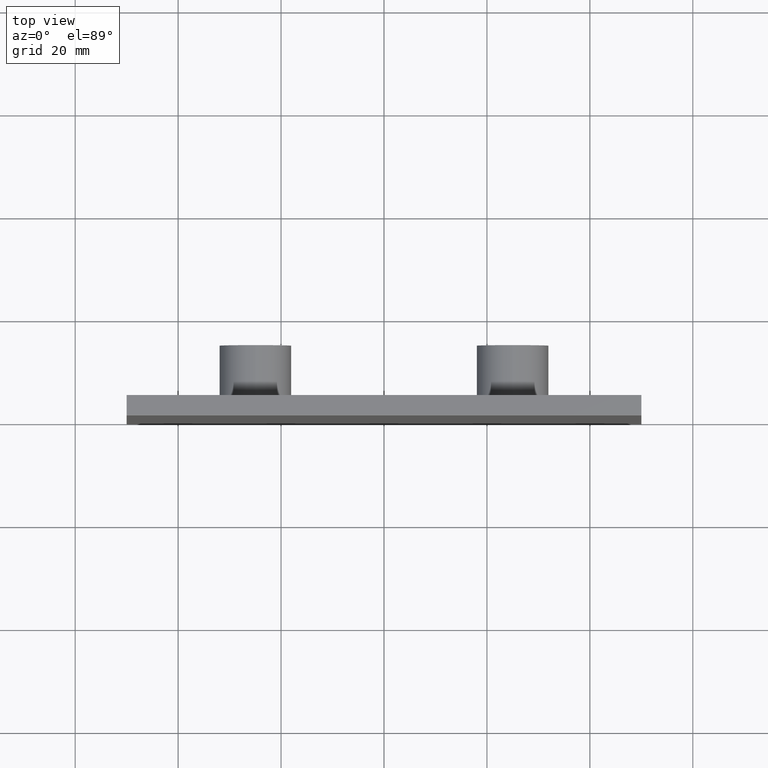
[diagram: clean part render]
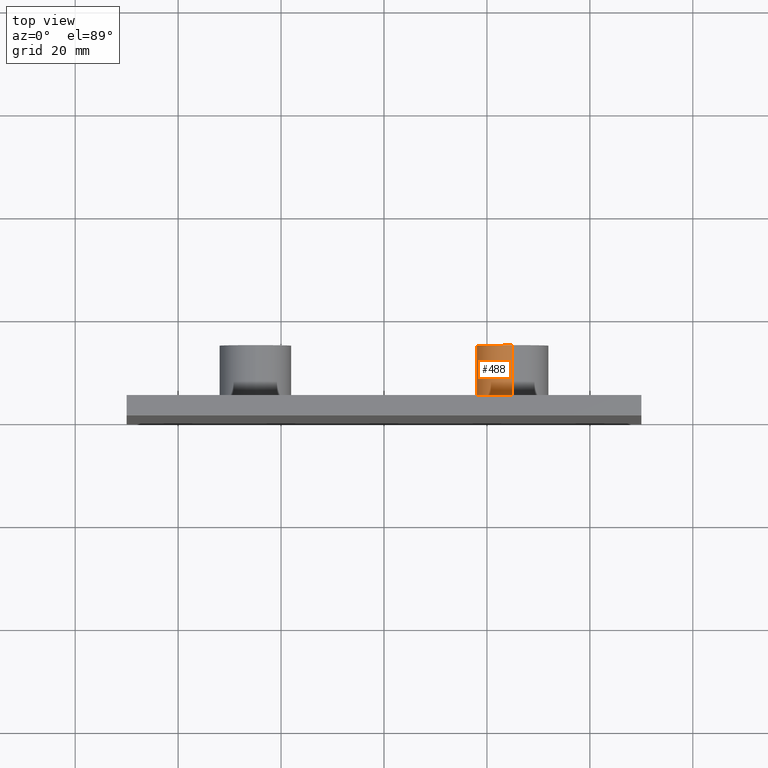
[diagram: same view with one face highlighted and labeled with its STEP entity id]
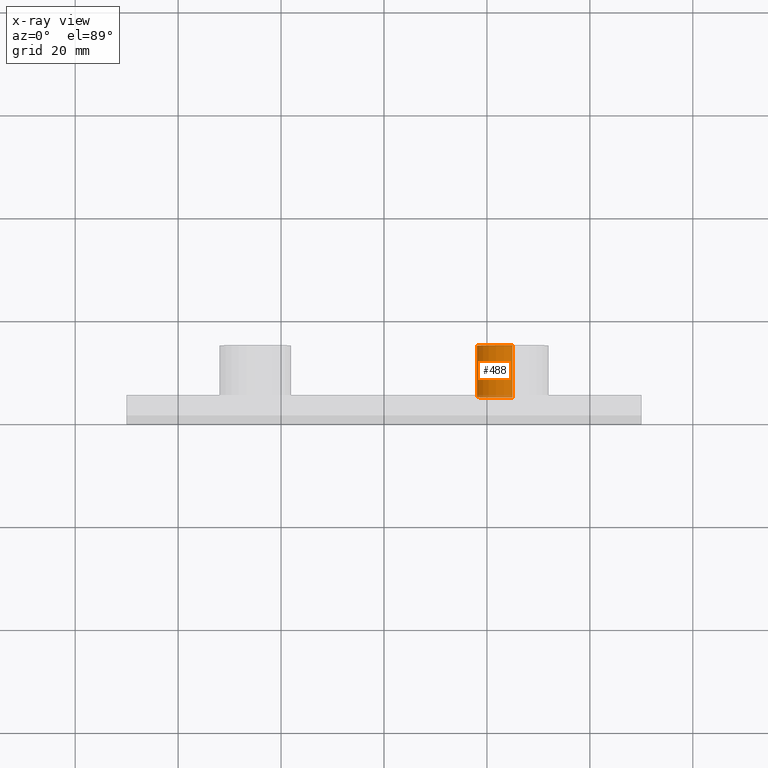
[diagram: x-ray of the same camera — body ghosted, the highlighted face saturated]
A machine part, top view. The second image highlights one B-rep face of the part: STEP entity #488.
The next image is the same camera in x-ray: the body ghosted, the highlighted face saturated — about 5% of this face is hidden behind the body in this view.
In plain terms, the highlighted cylindrical surface (edge-blend (fillet) strip) has radius 7 mm, axis along (-0, -1, -0).
Its self-contained STEP definition (entity closure, byte-faithful):
#35 = DIRECTION ( 'NONE',  ( 0.0000000000000000000, 0.0000000000000000000, -1.000000000000000000 ) ) ;
#56 = DIRECTION ( 'NONE',  ( -0.0000000000000000000, -1.000000000000000000, -0.0000000000000000000 ) ) ;
#60 = CARTESIAN_POINT ( 'NONE',  ( 24.99999999999999300, 14.00000000000000000, 25.00000000000003600 ) ) ;
#71 = VERTEX_POINT ( 'NONE', #189 ) ;
#84 = VERTEX_POINT ( 'NONE', #153 ) ;
#90 = VERTEX_POINT ( 'NONE', #184 ) ;
#91 = VERTEX_POINT ( 'NONE', #137 ) ;
#137 = CARTESIAN_POINT ( 'NONE',  ( 24.99999999999999300, 14.00000000000000000, 18.00000000000003600 ) ) ;
#153 = CARTESIAN_POINT ( 'NONE',  ( 24.99999999999999300, 4.000000000000000000, 18.00000000000003600 ) ) ;
#184 = CARTESIAN_POINT ( 'NONE',  ( 24.99999999999999300, 4.000000000000000000, 32.00000000000003600 ) ) ;
#189 = CARTESIAN_POINT ( 'NONE',  ( 24.99999999999999300, 14.00000000000000000, 32.00000000000003600 ) ) ;
#294 = DIRECTION ( 'NONE',  ( 0.0000000000000000000, 0.0000000000000000000, 1.000000000000000000 ) ) ;
#318 = DIRECTION ( 'NONE',  ( 0.0000000000000000000, 1.000000000000000000, 0.0000000000000000000 ) ) ;
#325 = CARTESIAN_POINT ( 'NONE',  ( 24.99999999999999300, 14.00000000000000000, 25.00000000000003600 ) ) ;
#362 = EDGE_LOOP ( 'NONE', ( #610, #611, #612, #613 ) ) ;
#418 = CARTESIAN_POINT ( 'NONE',  ( 24.99999999999999300, 14.00000000000000000, 32.00000000000003600 ) ) ;
#419 = DIRECTION ( 'NONE',  ( -0.0000000000000000000, -1.000000000000000000, -0.0000000000000000000 ) ) ;
#422 = CARTESIAN_POINT ( 'NONE',  ( 24.99999999999999300, 14.00000000000000000, 18.00000000000003600 ) ) ;
#423 = DIRECTION ( 'NONE',  ( -0.0000000000000000000, -1.000000000000000000, -0.0000000000000000000 ) ) ;
#488 = ADVANCED_FACE ( 'NONE', ( #653 ), #654, .T. ) ;
#514 = EDGE_CURVE ( 'NONE', #91, #71, #699, .T. ) ;
#538 = AXIS2_PLACEMENT_3D ( 'NONE', #60, #56, #35 ) ;
#559 = AXIS2_PLACEMENT_3D ( 'NONE', #325, #318, #294 ) ;
#572 = AXIS2_PLACEMENT_3D ( 'NONE', #844, #845, #846 ) ;
#610 = ORIENTED_EDGE ( 'NONE', *, *, #900, .F. ) ;
#611 = ORIENTED_EDGE ( 'NONE', *, *, #514, .F. ) ;
#612 = ORIENTED_EDGE ( 'NONE', *, *, #902, .T. ) ;
#613 = ORIENTED_EDGE ( 'NONE', *, *, #834, .T. ) ;
#653 = FACE_OUTER_BOUND ( 'NONE', #362, .T. ) ;
#654 = CYLINDRICAL_SURFACE ( 'NONE', #538, 6.999999999999999100 ) ;
#699 = CIRCLE ( 'NONE', #559, 6.999999999999999100 ) ;
#716 = CIRCLE ( 'NONE', #572, 6.999999999999999100 ) ;
#751 = LINE ( 'NONE', #418, #752 ) ;
#752 = VECTOR ( 'NONE', #419, 1000.000000000000000 ) ;
#755 = LINE ( 'NONE', #422, #756 ) ;
#756 = VECTOR ( 'NONE', #423, 1000.000000000000000 ) ;
#834 = EDGE_CURVE ( 'NONE', #84, #90, #716, .T. ) ;
#844 = CARTESIAN_POINT ( 'NONE',  ( 24.99999999999999300, 4.000000000000000000, 25.00000000000003600 ) ) ;
#845 = DIRECTION ( 'NONE',  ( 0.0000000000000000000, 1.000000000000000000, 0.0000000000000000000 ) ) ;
#846 = DIRECTION ( 'NONE',  ( 0.0000000000000000000, 0.0000000000000000000, 1.000000000000000000 ) ) ;
#900 = EDGE_CURVE ( 'NONE', #71, #90, #751, .T. ) ;
#902 = EDGE_CURVE ( 'NONE', #91, #84, #755, .T. ) ;